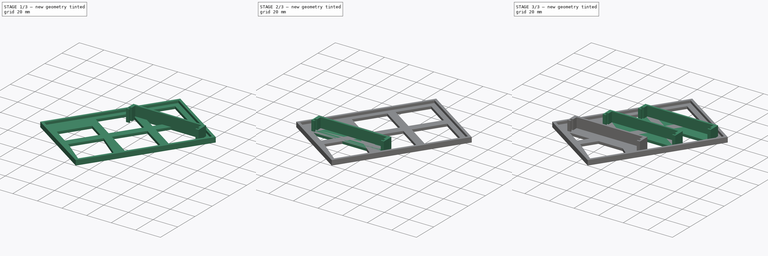
[diagram: build sequence overview — one tinted view per stage of 3, left to right]
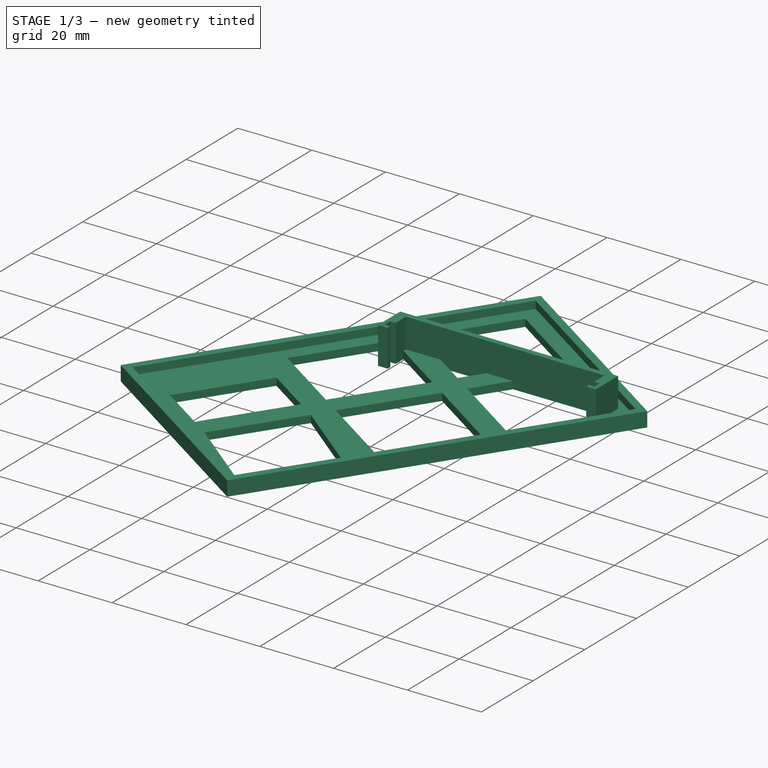
[diagram: stage 1 of 3 — iso view after this stage's code; geometry added in this stage tinted green]
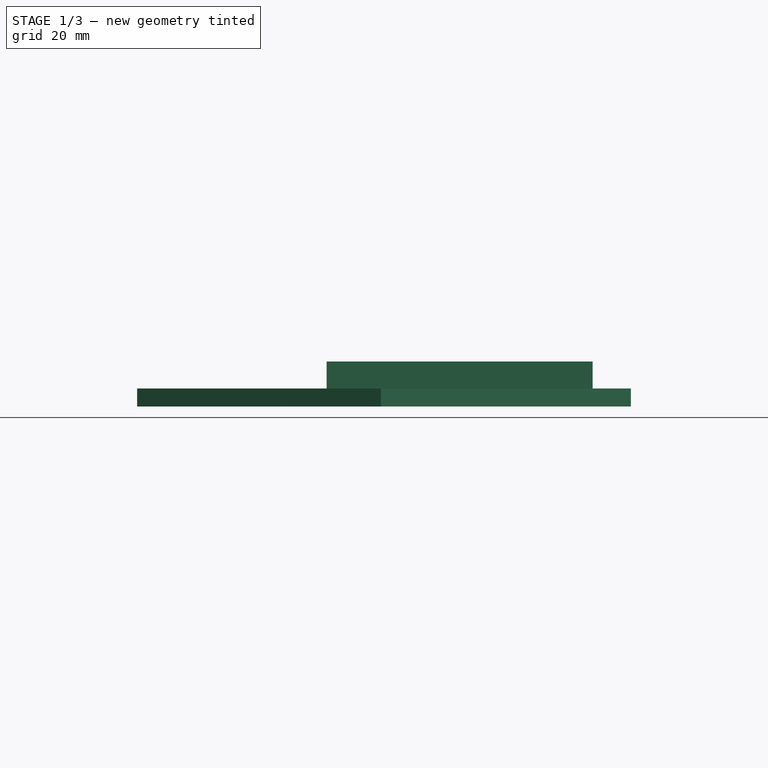
[diagram: stage 1 of 3 — front view after this stage's code; geometry added in this stage tinted green]
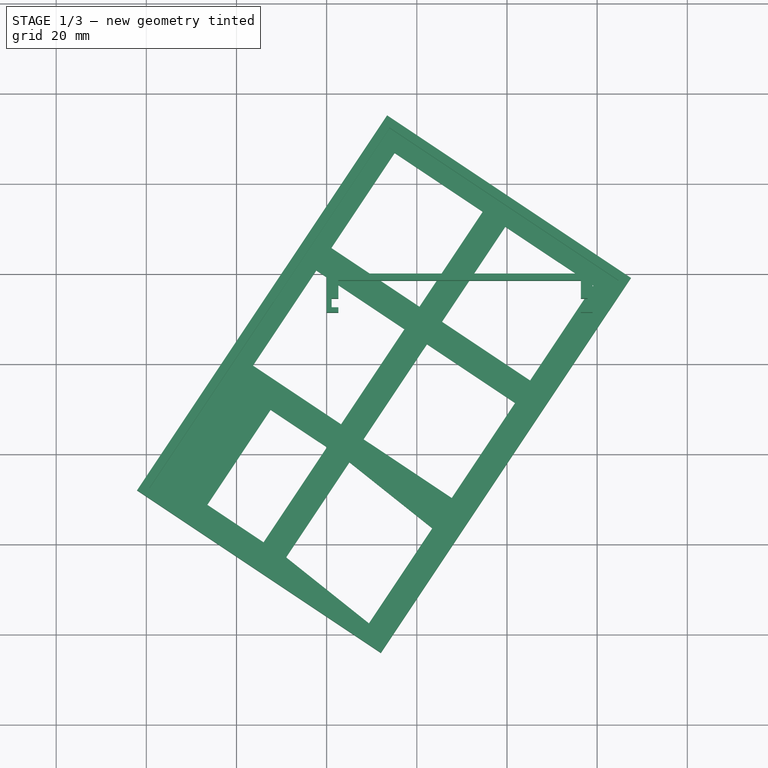
[diagram: stage 1 of 3 — top view after this stage's code; geometry added in this stage tinted green]
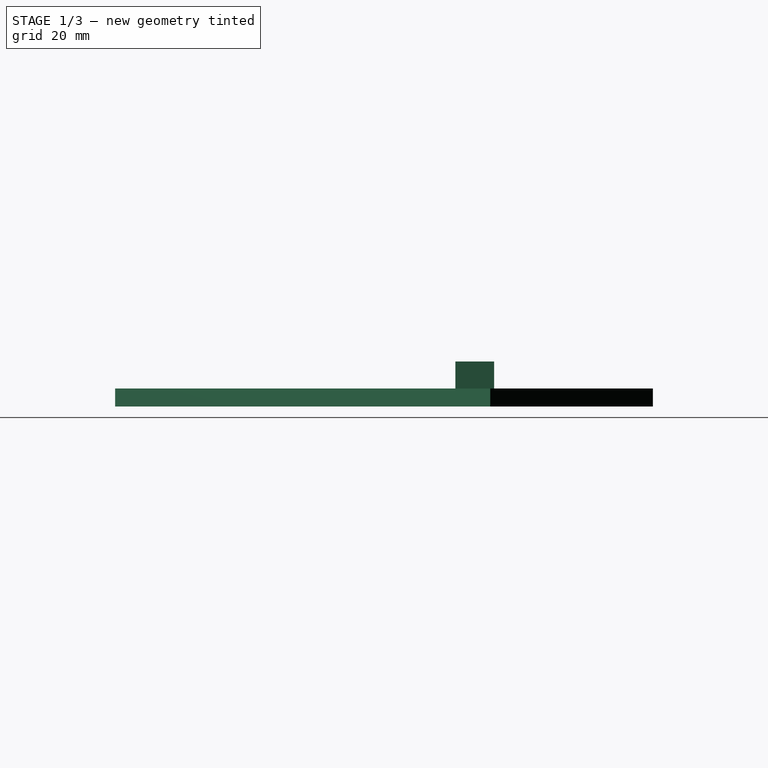
[diagram: stage 1 of 3 — right view after this stage's code; geometry added in this stage tinted green]
FCSTD DOCUMENT  (FreeCAD 0.15R4671 (Git))
Label: DoubleRelay
License: All rights reserved
LicenseURL: http://en.wikipedia.org/wiki/All_rights_reserved
objects: Sketcher::SketchObject×4, PartDesign::Pad×4, Part::MultiFuse×4
note: 16 computed .brp shape members not serialized (recipe doc carries the construction recipe); baked Part::Feature solids carry a one-line shape summary decoded from their .brp

FEATURE [PartDesign::Pad] Pad001
  Length = 10
  Length2 = 100
  Sketch = -> Sketch001
  Type = 0
FEATURE [Sketcher::SketchObject] Sketch002
  sketch-geometry (19):
    g0: LineSegment [constr] StartX=-28 StartY=0 StartZ=0 EndX=59 EndY=0 EndZ=0
    g1: LineSegment [constr] StartX=59 StartY=0 StartZ=0 EndX=59 EndY=-42 EndZ=0
    g2: LineSegment [constr] StartX=59 StartY=-42 StartZ=0 EndX=-28 EndY=-42 EndZ=0
    g3: LineSegment [constr] StartX=-28 StartY=-42 StartZ=0 EndX=-28 EndY=0 EndZ=0
    g4: LineSegment StartX=13.9697 StartY=32.4239 StartZ=0 EndX=-39.2815 EndY=-47.4529 EndZ=0
    g5: LineSegment StartX=-39.2815 StartY=-47.4529 StartZ=0 EndX=11.4736 EndY=-81.2897 EndZ=0
    g6: LineSegment StartX=11.4736 StartY=-81.2897 StartZ=0 EndX=64.7248 EndY=-1.41282 EndZ=0
    g7: LineSegment StartX=64.7248 StartY=-1.41282 StartZ=0 EndX=13.9697 EndY=32.4239 EndZ=0
    g8: LineSegment [constr] StartX=-28 StartY=-10 StartZ=0 EndX=59 EndY=-10 EndZ=0
    g9: LineSegment [constr] StartX=59 StartY=-10 StartZ=0 EndX=31 EndY=-52 EndZ=0
    g10: LineSegment [constr] StartX=31 StartY=-52 StartZ=0 EndX=-28 EndY=-52 EndZ=0
    g11: LineSegment [constr] StartX=-28 StartY=-52 StartZ=0 EndX=-28 EndY=-10 EndZ=0
    g12: LineSegment StartX=13.415 StartY=35.1974 StartZ=0 EndX=67.4983 EndY=-0.858122 EndZ=0
    g13: LineSegment StartX=67.4983 StartY=-0.858122 StartZ=0 EndX=12.0283 EndY=-84.0632 EndZ=0
    g14: LineSegment StartX=12.0283 StartY=-84.0632 StartZ=0 EndX=-42.055 EndY=-48.0076 EndZ=0
    g15: LineSegment StartX=-42.055 StartY=-48.0076 StartZ=0 EndX=13.415 EndY=35.1974 EndZ=0
    g16: LineSegment [constr] StartX=13.9697 StartY=32.4239 StartZ=0 EndX=12.3056 EndY=33.5333 EndZ=0
    g17: LineSegment [constr] StartX=64.7248 StartY=-1.41282 StartZ=0 EndX=65.8342 EndY=0.251278 EndZ=0
    g18: LineSegment [constr] StartX=59 StartY=0 StartZ=0 EndX=60.1094 EndY=1.6641 EndZ=0
  constraints (57):
    c: Coincident(g0,g1)
    c: Coincident(g1,g2)
    c: Coincident(g2,g3)
    c: Coincident(g3,g0)
    c: Horizontal(g0)
    c: Horizontal(g2)
    c: Vertical(g1)
    c: Vertical(g3)
    c: PointOnObject(g0,g-1)
    c: Distance(g1) = 42
    c: DistanceX(g-1,g0) = 59
    c: DistanceX(g-1,g0) = -28
    c: Coincident(g4,g5)
    c: Coincident(g5,g6)
    c: Coincident(g6,g7)
    c: Coincident(g7,g4)
    c: Parallel(g6,g4)
    c: Perpendicular(g6,g7)
    c: Parallel(g7,g5)
    c: Coincident(g8,g9)
    c: Coincident(g9,g10)
    c: Coincident(g10,g11)
    c: Coincident(g11,g8)
    c: Horizontal(g8)
    c: Horizontal(g10)
    c: Vertical(g11)
    c: DistanceY(g-1,g8) = -10
    c: DistanceX(g-1,g8) = 59
    c: DistanceX(g-1,g8) = -28
    c: DistanceY(g9,g0) = 52
    c: DistanceX(g-1,g9) = 31
    c: PointOnObject(g9,g6)
    c: Distance(g6) = 96
    c: Coincident(g12,g13)
    c: Coincident(g13,g14)
    c: Coincident(g14,g15)
    c: Coincident(g15,g12)
    c: PointOnObject(g8,g6)
    c: Distance(g7) = 61
    c: Parallel(g12,g7)
    c: Parallel(g12,g14)
    c: Parallel(g15,g13)
    c: Parallel(g13,g6)
    c: Coincident(g16,g4)
    c: PointOnObject(g16,g15)
    c: Perpendicular(g16,g15)
    c: Distance(g16) = 2
    c: Coincident(g17,g6)
    c: PointOnObject(g17,g12)
    c: Perpendicular(g12,g17)
    c: Distance(g17) = 2
    c: Distance(g15) = 100
    c: Distance(g12) = 65
    c: Coincident(g18,g0)
    c: PointOnObject(g18,g7)
    c: Perpendicular(g7,g18)
    c: Distance(g18) = 2
FEATURE [PartDesign::Pad] Pad002
  Length = 4
  Length2 = 100
  Sketch = -> Sketch002
  Type = 0
FEATURE [Sketcher::SketchObject] Sketch003
  sketch-geometry (39):
    g0: LineSegment [constr] StartX=0 StartY=0 StartZ=0 EndX=59 EndY=0 EndZ=0
    g1: LineSegment [constr] StartX=59 StartY=0 StartZ=0 EndX=59 EndY=-10 EndZ=0
    g2: LineSegment [constr] StartX=59 StartY=-10 StartZ=0 EndX=0 EndY=-10 EndZ=0
    g3: LineSegment [constr] StartX=0 StartY=-10 StartZ=0 EndX=0 EndY=0 EndZ=0
    g4: LineSegment [constr] StartX=0 StartY=0 StartZ=0 EndX=31 EndY=0 EndZ=0
    g5: LineSegment [constr] StartX=31 StartY=0 StartZ=0 EndX=31 EndY=-52 EndZ=0
    g6: LineSegment [constr] StartX=31 StartY=-52 StartZ=0 EndX=0 EndY=-52 EndZ=0
    g7: LineSegment [constr] StartX=0 StartY=-52 StartZ=0 EndX=0 EndY=0 EndZ=0
    g8: LineSegment StartX=13.415 StartY=35.1974 StartZ=0 EndX=-42.055 EndY=-48.0076 EndZ=0
    g9: LineSegment StartX=-42.055 StartY=-48.0076 StartZ=0 EndX=12.0283 EndY=-84.0632 EndZ=0
    g10: LineSegment StartX=12.0283 StartY=-84.0632 StartZ=0 EndX=67.4983 EndY=-0.858122 EndZ=0
    g11: LineSegment StartX=67.4983 StartY=-0.858122 StartZ=0 EndX=13.415 EndY=35.1974 EndZ=0
    g12: LineSegment [constr] StartX=32.6641 StartY=-53.1094 StartZ=0 EndX=31 EndY=-52 EndZ=0
    g13: LineSegment [constr] StartX=60.6641 StartY=-11.1094 StartZ=0 EndX=59 EndY=-10 EndZ=0
    g14: LineSegment [constr] StartX=61.2188 StartY=3.3282 StartZ=0 EndX=59 EndY=0 EndZ=0
    g15: LineSegment StartX=15.0791 StartY=26.8769 StartZ=0 EndX=34.6323 EndY=13.8414 EndZ=0
    g16: LineSegment StartX=34.6323 StartY=13.8414 StartZ=0 EndX=20.5799 EndY=-7.23717 EndZ=0
    g17: LineSegment StartX=20.5799 StartY=-7.23717 StartZ=0 EndX=1.02671 EndY=5.79828 EndZ=0
    g18: LineSegment StartX=1.02671 StartY=5.79828 StartZ=0 EndX=15.0791 EndY=26.8769 EndZ=0
    g19: LineSegment StartX=39.6246 StartY=10.5132 StartZ=0 EndX=59.1778 EndY=-2.52222 EndZ=0
    g20: LineSegment StartX=59.1778 StartY=-2.52222 StartZ=0 EndX=45.1254 EndY=-23.6008 EndZ=0
    g21: LineSegment StartX=45.1254 StartY=-23.6008 StartZ=0 EndX=25.5722 EndY=-10.5654 EndZ=0
    g22: LineSegment StartX=25.5722 StartY=-10.5654 StartZ=0 EndX=39.6246 EndY=10.5132 EndZ=0
    g23: LineSegment StartX=-2.30149 StartY=0.805979 StartZ=0 EndX=-16.3539 EndY=-20.2726 EndZ=0
    g24: LineSegment StartX=-16.3539 StartY=-20.2726 StartZ=0 EndX=3.19929 EndY=-33.3081 EndZ=0
    g25: LineSegment StartX=3.19929 StartY=-33.3081 StartZ=0 EndX=17.2517 EndY=-12.2295 EndZ=0
    g26: LineSegment StartX=17.2517 StartY=-12.2295 StartZ=0 EndX=-2.30149 EndY=0.805979 EndZ=0
    g27: LineSegment StartX=22.244 StartY=-15.5577 StartZ=0 EndX=8.19159 EndY=-36.6363 EndZ=0
    g28: LineSegment StartX=8.19159 StartY=-36.6363 StartZ=0 EndX=27.7448 EndY=-49.6717 EndZ=0
    g29: LineSegment StartX=27.7448 StartY=-49.6717 StartZ=0 EndX=41.7972 EndY=-28.5931 EndZ=0
    g30: LineSegment StartX=41.7972 StartY=-28.5931 StartZ=0 EndX=22.244 EndY=-15.5577 EndZ=0
    g31: LineSegment StartX=0.0599771 StartY=-38.4263 StartZ=0 EndX=-13.9924 EndY=-59.5049 EndZ=0
    g32: LineSegment StartX=5.05466 StartY=-41.7509 StartZ=0 EndX=-8.99774 EndY=-62.8295 EndZ=0
    g33: LineSegment StartX=-8.99774 StartY=-62.8295 StartZ=0 EndX=9.37918 EndY=-77.4767 EndZ=0
    g34: LineSegment StartX=9.37918 StartY=-77.4767 StartZ=0 EndX=23.4316 EndY=-56.3981 EndZ=0
    g35: LineSegment StartX=23.4316 StartY=-56.3981 StartZ=0 EndX=5.05466 EndY=-41.7509 EndZ=0
    g36: LineSegment StartX=-13.9924 StartY=-59.5049 StartZ=0 EndX=-26.4732 EndY=-51.1844 EndZ=0
    g37: LineSegment StartX=-26.4732 StartY=-51.1844 StartZ=0 EndX=-12.4208 EndY=-30.1058 EndZ=0
    g38: LineSegment StartX=-12.4208 StartY=-30.1058 StartZ=0 EndX=0.0599771 EndY=-38.4263 EndZ=0
  constraints (117):
    c: Coincident(g0,g1)
    c: Coincident(g1,g2)
    c: Coincident(g2,g3)
    c: Coincident(g3,g0)
    c: Horizontal(g0)
    c: Horizontal(g2)
    c: Vertical(g1)
    c: Vertical(g3)
    c: Coincident(g4,g5)
    c: Coincident(g5,g6)
    c: Coincident(g6,g7)
    c: Coincident(g7,g4)
    c: Horizontal(g4)
    c: Horizontal(g6)
    c: Vertical(g5)
    c: Vertical(g7)
    c: Coincident(g4,g0)
    c: Coincident(g4,g-1)
    c: Distance(g6) = 31
    c: Distance(g0) = 59
    c: Distance(g1) = 10
    c: Distance(g5) = 52
    c: Coincident(g8,g9)
    c: Coincident(g9,g10)
    c: Coincident(g10,g11)
    c: Coincident(g11,g8)
    c: Parallel(g11,g9)
    c: Parallel(g8,g10)
    c: Perpendicular(g10,g11)
    c: PointOnObject(g12,g10)
    c: PointOnObject(g13,g10)
    c: PointOnObject(g14,g11)
    c: Perpendicular(g11,g14)
    c: Perpendicular(g10,g13)
    c: Perpendicular(g10,g12)
    c: Distance(g12) = 2
    c: Distance(g13) = 2
    c: Distance(g14) = 4
    c: Coincident(g14,g0)
    c: Coincident(g13,g1)
    c: Coincident(g12,g5)
    c: Distance(g11) = 65
    c: Distance(g8) = 100
    c: Coincident(g15,g16)
    c: Coincident(g16,g17)
    c: Coincident(g17,g18)
    c: Coincident(g18,g15)
    c: Coincident(g19,g20)
    c: Coincident(g20,g21)
    c: Coincident(g21,g22)
    c: Coincident(g22,g19)
    c: Equal(g16,g22)
    c: Equal(g22,g20)
    c: Equal(g20,g18)
    c: Parallel(g22,g20)
    c: Parallel(g20,g16)
    c: Parallel(g16,g18)
    c: Parallel(g18,g8)
    c: Distance(g15,g11) = 6
    c: Distance(g19,g11) = 6
    c: Parallel(g15,g17)
    c: Parallel(g17,g19)
    c: Parallel(g19,g21)
    c: Parallel(g11,g15)
    c: Distance(g19,g15) = 6
    c: Distance(g15,g8) = 6
    c: Distance(g15) = 23.5
    c: Equal(g19,g15)
    c: Distance(g18) = 25.3333
    c: Coincident(g23,g24)
    c: Coincident(g24,g25)
    c: Coincident(g25,g26)
    c: Coincident(g26,g23)
    c: Coincident(g27,g28)
    c: Coincident(g28,g29)
    c: Coincident(g29,g30)
    c: Coincident(g30,g27)
    c: Parallel(g30,g21)
    c: Parallel(g21,g26)
    c: Parallel(g26,g17)
    c: Parallel(g17,g28)
    c: Parallel(g28,g24)
    c: Parallel(g27,g25)
    c: Parallel(g25,g23)
    c: Parallel(g23,g29)
    c: Parallel(g29,g8)
    c: Distance(g23,g17) = 6
    c: Distance(g23,g8) = 6
    c: Distance(g27,g21) = 6
    c: Distance(g25,g27) = 6
    c: Equal(g26,g30)
    c: Equal(g30,g21)
    c: Equal(g27,g25)
    c: Equal(g25,g16)
    c: Coincident(g32,g33)
    c: Coincident(g33,g34)
    c: Coincident(g34,g35)
    c: Coincident(g35,g32)
    c: Parallel(g35,g33)
    c: Parallel(g32,g34)
    c: Equal(g31,g32)
    c: Equal(g32,g27)
    c: Equal(g35,g28)
    c: Distance(g31,g32) = 6
    c: Distance(g32,g27) = 6
    c: Coincident(g31,g36)
    c: Coincident(g36,g37)
    c: Coincident(g37,g38)
    c: Coincident(g38,g31)
    c: Parallel(g38,g36)
    c: Parallel(g36,g24)
    c: Distance(g37,g24) = 6
    c: Equal(g37,g31)
    c: Parallel(g31,g32)
    c: Parallel(g32,g37)
    c: Parallel(g34,g27)
    c: Distance(g38) = 15
FEATURE [PartDesign::Pad] Pad003
  Length = 2
  Length2 = 100
  Sketch = -> Sketch003
  Type = 0
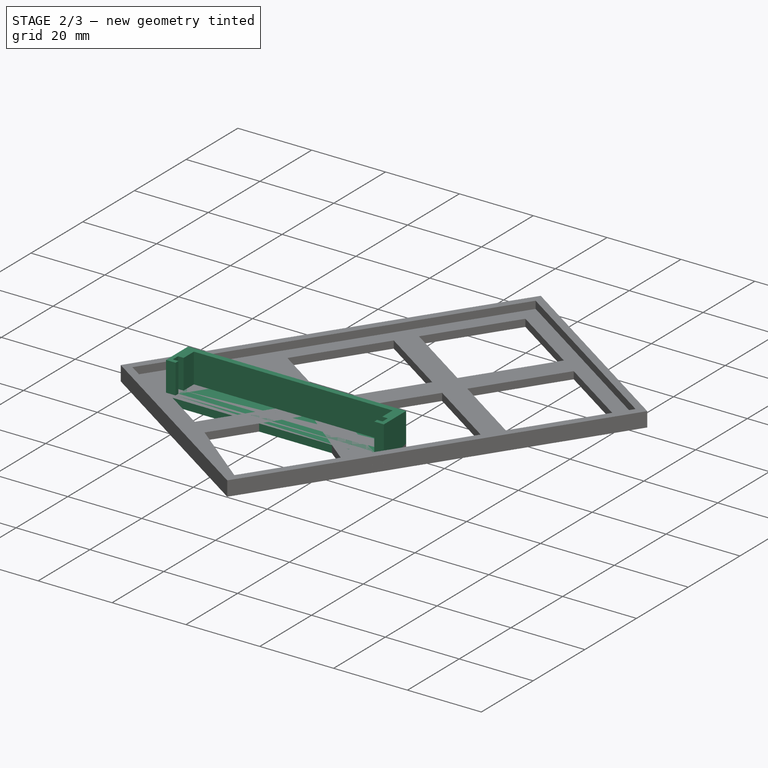
[diagram: stage 2 of 3 — iso view after this stage's code; geometry added in this stage tinted green]
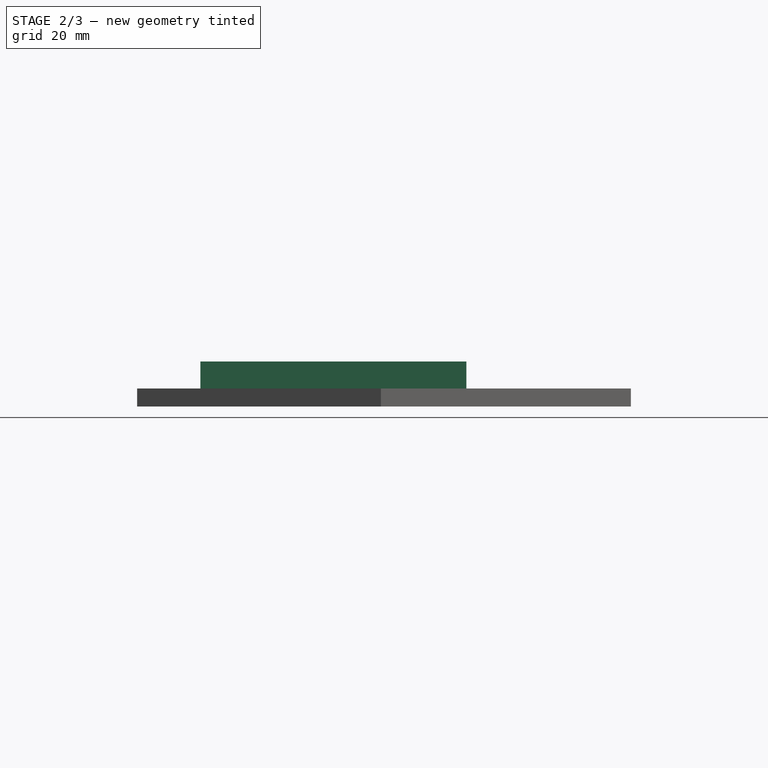
[diagram: stage 2 of 3 — front view after this stage's code; geometry added in this stage tinted green]
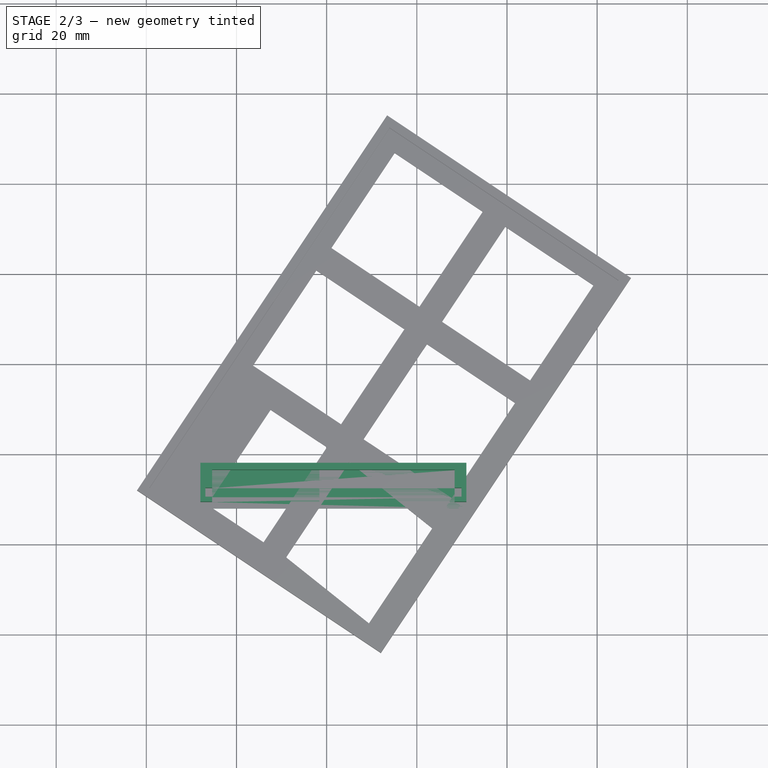
[diagram: stage 2 of 3 — top view after this stage's code; geometry added in this stage tinted green]
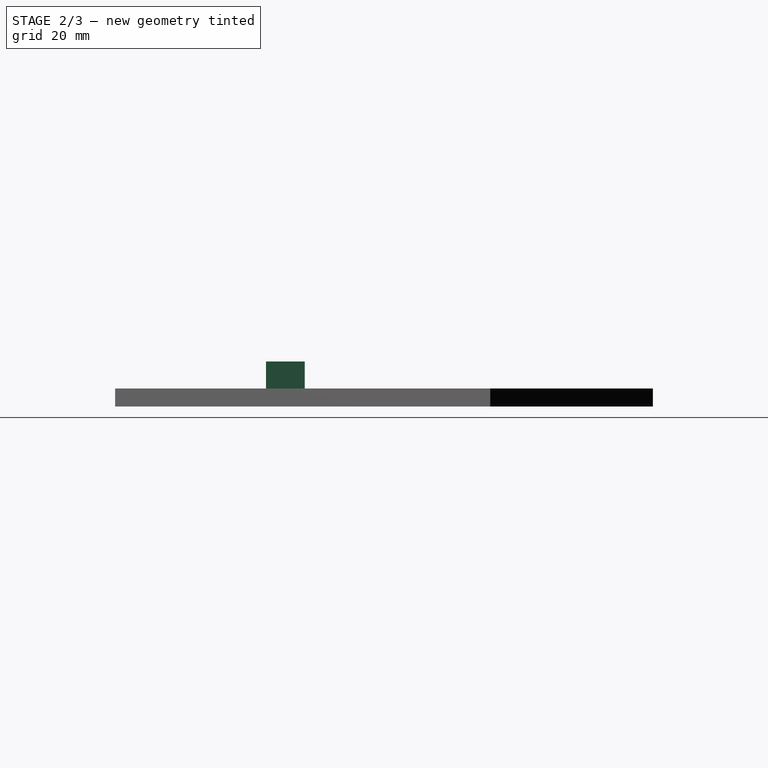
[diagram: stage 2 of 3 — right view after this stage's code; geometry added in this stage tinted green]
FEATURE [Sketcher::SketchObject] Sketch  label="Base"
  sketch-geometry (4):
    g0: LineSegment StartX=0 StartY=0 StartZ=0 EndX=59 EndY=0 EndZ=0
    g1: LineSegment StartX=59 StartY=0 StartZ=0 EndX=59 EndY=-10 EndZ=0
    g2: LineSegment StartX=59 StartY=-10 StartZ=0 EndX=0 EndY=-10 EndZ=0
    g3: LineSegment StartX=0 StartY=-10 StartZ=0 EndX=0 EndY=0 EndZ=0
  constraints (11):
    c: Coincident(g0,g1)
    c: Coincident(g1,g2)
    c: Coincident(g2,g3)
    c: Coincident(g3,g0)
    c: Horizontal(g0)
    c: Horizontal(g2)
    c: Vertical(g1)
    c: Vertical(g3)
    c: Distance(g0) = 59
    c: Distance(g1) = 10
    c: Coincident(g0,g-1)
FEATURE [Sketcher::SketchObject] Sketch001  label="Seguradores"
  sketch-geometry (16):
    g0: LineSegment StartX=0 StartY=0 StartZ=0 EndX=0 EndY=-8.6 EndZ=0
    g1: LineSegment StartX=0 StartY=-8.6 StartZ=0 EndX=2.6 EndY=-8.6 EndZ=0
    g2: LineSegment StartX=2.6 StartY=-8.6 StartZ=0 EndX=2.6 EndY=-7.5 EndZ=0
    g3: LineSegment StartX=2.6 StartY=-7.5 StartZ=0 EndX=1.1 EndY=-7.5 EndZ=0
    g4: LineSegment StartX=1.1 StartY=-7.5 StartZ=0 EndX=1.1 EndY=-5.5 EndZ=0
    g5: LineSegment StartX=1.1 StartY=-5.5 StartZ=0 EndX=2.6 EndY=-5.5 EndZ=0
    g6: LineSegment StartX=59 StartY=0 StartZ=0 EndX=0 EndY=0 EndZ=0
    g7: LineSegment StartX=2.6 StartY=-5.5 StartZ=0 EndX=2.6 EndY=-1.5 EndZ=0
    g8: LineSegment StartX=2.6 StartY=-1.5 StartZ=0 EndX=56.4 EndY=-1.5 EndZ=0
    g9: LineSegment StartX=56.4 StartY=-1.5 StartZ=0 EndX=56.4 EndY=-5.5 EndZ=0
    g10: LineSegment StartX=56.4 StartY=-5.5 StartZ=0 EndX=57.9 EndY=-5.5 EndZ=0
    g11: LineSegment StartX=57.9 StartY=-5.5 StartZ=0 EndX=57.9 EndY=-7.5 EndZ=0
    g12: LineSegment StartX=57.9 StartY=-7.5 StartZ=0 EndX=56.4 EndY=-7.5 EndZ=0
    g13: LineSegment StartX=56.4 StartY=-7.5 StartZ=0 EndX=56.4 EndY=-8.6 EndZ=0
    g14: LineSegment StartX=56.4 StartY=-8.6 StartZ=0 EndX=59 EndY=-8.6 EndZ=0
    g15: LineSegment StartX=59 StartY=-8.6 StartZ=0 EndX=59 EndY=0 EndZ=0
  constraints (53):
    c: Vertical(g0)
    c: Coincident(g0,g1)
    c: Coincident(g1,g2)
    c: Coincident(g2,g3)
    c: Horizontal(g3)
    c: Coincident(g3,g4)
    c: Vertical(g4)
    c: Coincident(g4,g5)
    c: PointOnObject(g6,g-1)
    c: Coincident(g6,g-1)
    c: Horizontal(g1)
    c: Vertical(g2)
    c: Equal(g5,g3)
    c: Horizontal(g5)
    c: Distance(g4) = 2
    c: Distance(g1) = 2.6
    c: Coincident(g0,g-1)
    c: Distance(g0) = 8.6
    c: Coincident(g5,g7)
    c: Vertical(g7)
    c: Coincident(g7,g8)
    c: Horizontal(g8)
    c: Coincident(g8,g9)
    c: Vertical(g9)
    c: Coincident(g9,g10)
    c: Horizontal(g10)
    c: Coincident(g10,g11)
    c: Vertical(g11)
    c: Coincident(g11,g12)
    c: Horizontal(g12)
    c: Coincident(g12,g13)
    c: Vertical(g13)
    c: Coincident(g13,g14)
    c: Horizontal(g14)
    c: Coincident(g14,g15)
    c: Vertical(g15)
    c: Coincident(g6,g15)
    c: Equal(g1,g14)
    c: Equal(g11,g4)
    c: Equal(g13,g2)
    c: Equal(g9,g7)
    c: Distance(g6) = 59
    c: Equal(g14,g1)
    c: Equal(g10,g12)
    c: DistanceX(g4,g10) = 56.8
    c: DistanceY(g7) = 4
    c: DistanceY(g-1,g7) = -1.5
    c: Equal(g9,g7)
    c: Equal(g5,g3)
    c: Equal(g5,g3)
    c: Equal(g3,g10)
    c: Equal(g10,g12)
    c: Equal(g15,g0)
FEATURE [PartDesign::Pad] Pad
  Length = 2
  Length2 = 100
  Sketch = -> Sketch
  Type = 0
FEATURE [Part::MultiFuse] Fusion002  label="Relay003"
  Placement = pos=(-28,-42,0) rot=(0,0,1;0rad)
  Shapes = -> [Pad,Pad001]
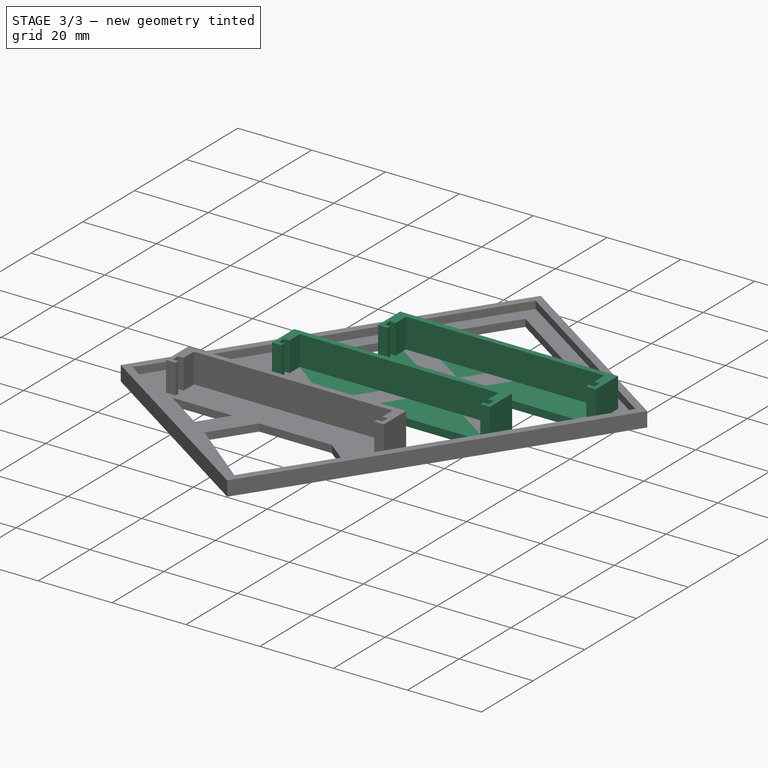
[diagram: stage 3 of 3 — iso view after this stage's code; geometry added in this stage tinted green]
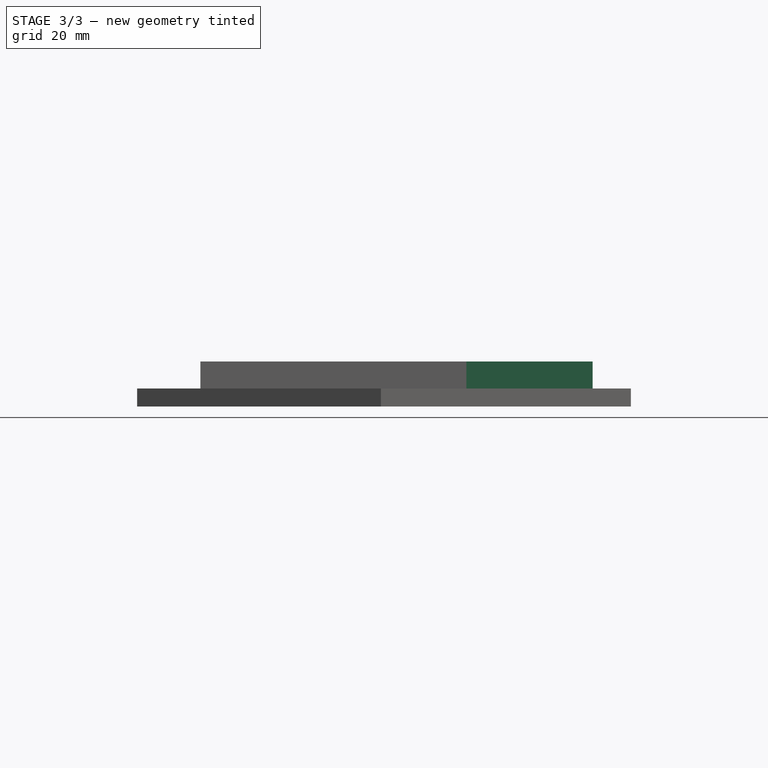
[diagram: stage 3 of 3 — front view after this stage's code; geometry added in this stage tinted green]
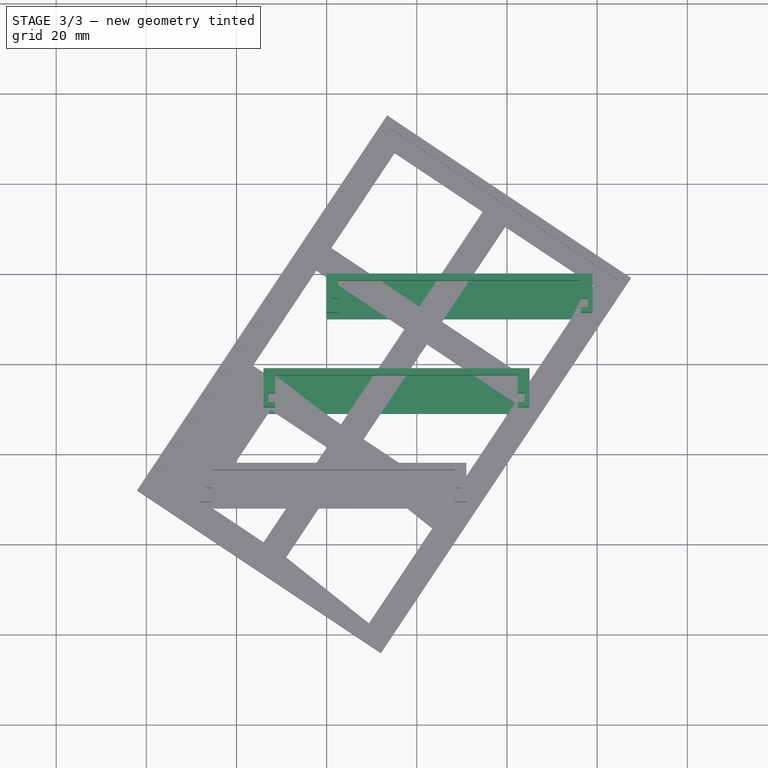
[diagram: stage 3 of 3 — top view after this stage's code; geometry added in this stage tinted green]
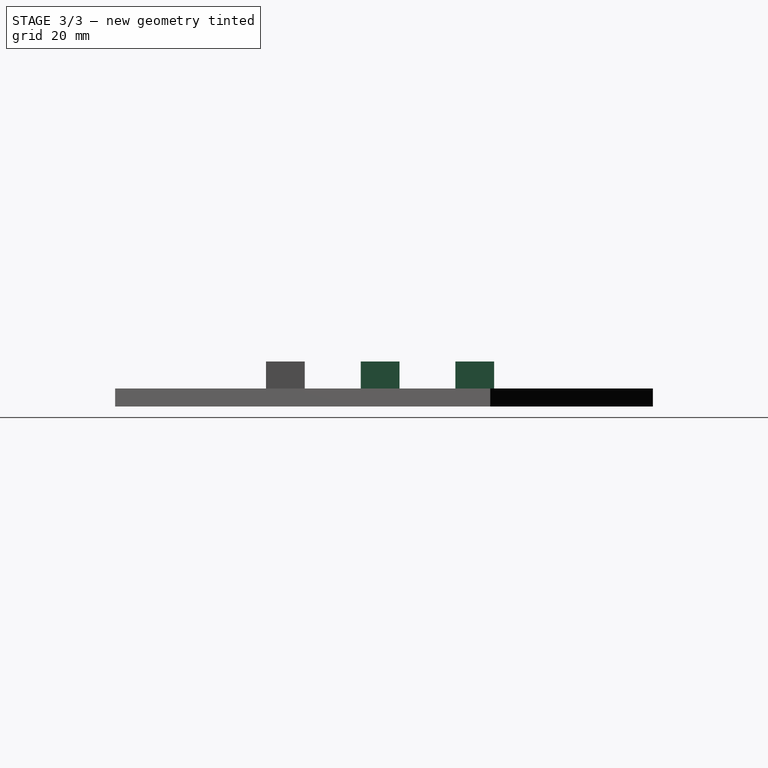
[diagram: stage 3 of 3 — right view after this stage's code; geometry added in this stage tinted green]
FEATURE [Part::MultiFuse] Fusion  label="Relay001"
  Shapes = -> [Pad,Pad001]
FEATURE [Part::MultiFuse] Fusion001  label="Relay002"
  Placement = pos=(-14,-21,0) rot=(0,0,1;0rad)
  Shapes = -> [Pad,Pad001]
FEATURE [Part::MultiFuse] Fusion003
  Shapes = -> [Pad003,Pad002,Fusion001,Fusion,Fusion002]
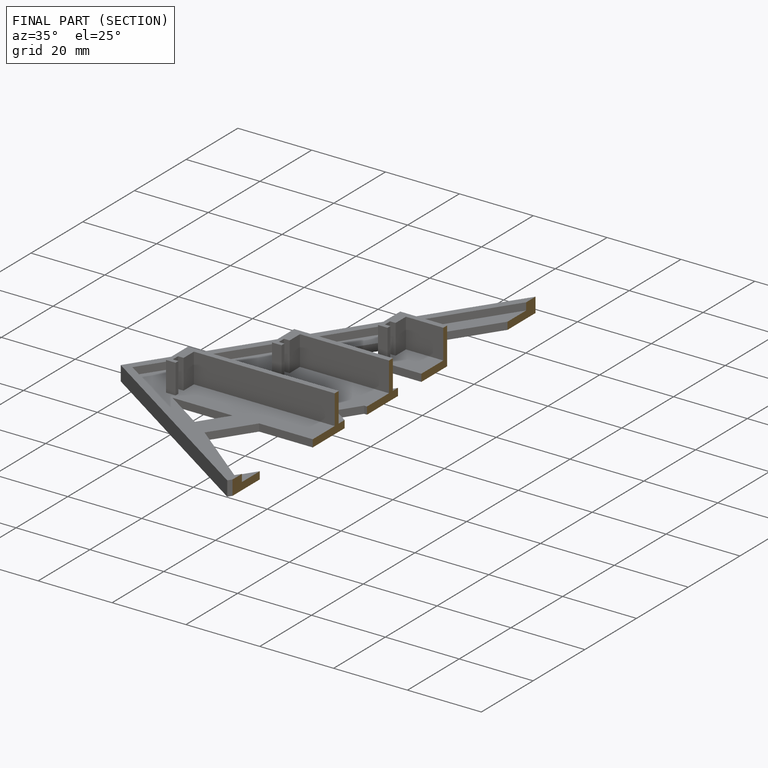
[diagram: finished part — half-section view (interior)]
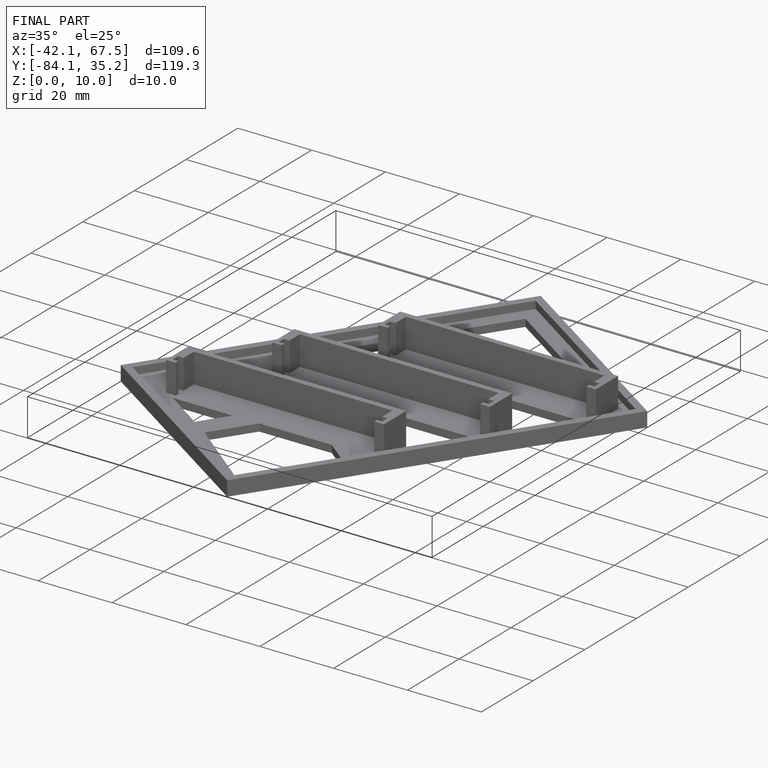
[diagram: finished part — iso view with bounding-box wireframe]
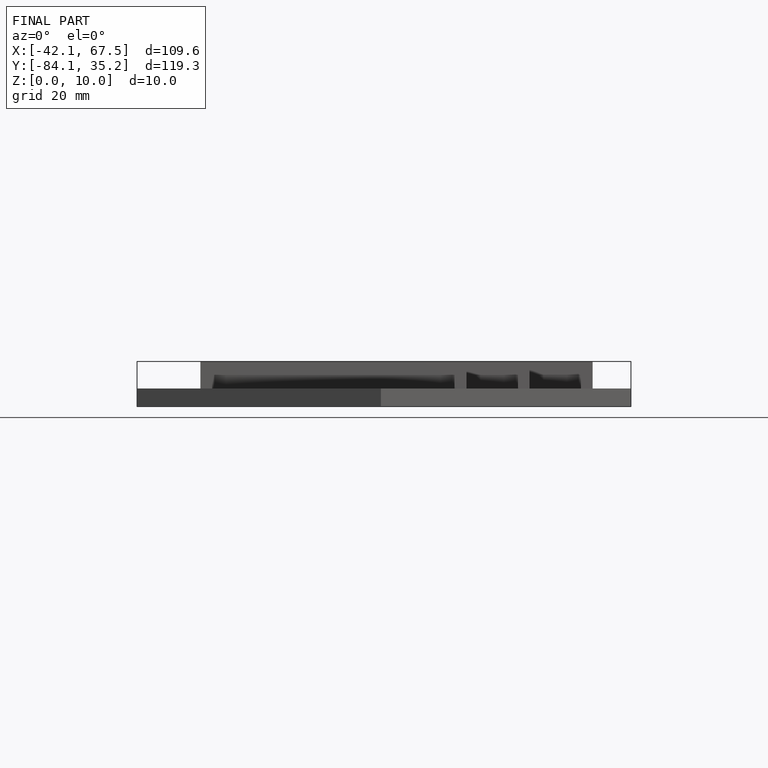
[diagram: finished part — front view with bounding-box wireframe]
